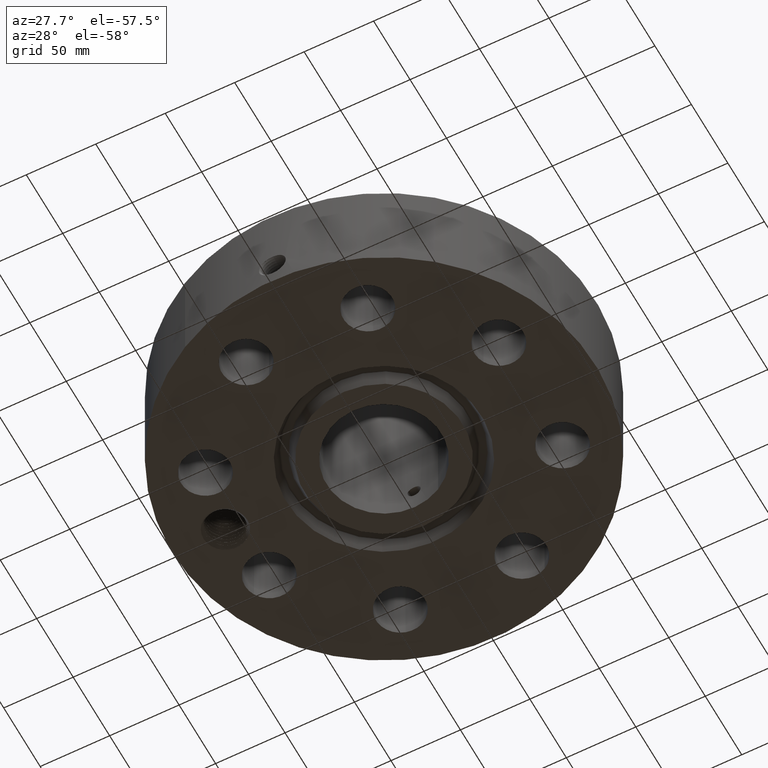
[diagram: clean part render]
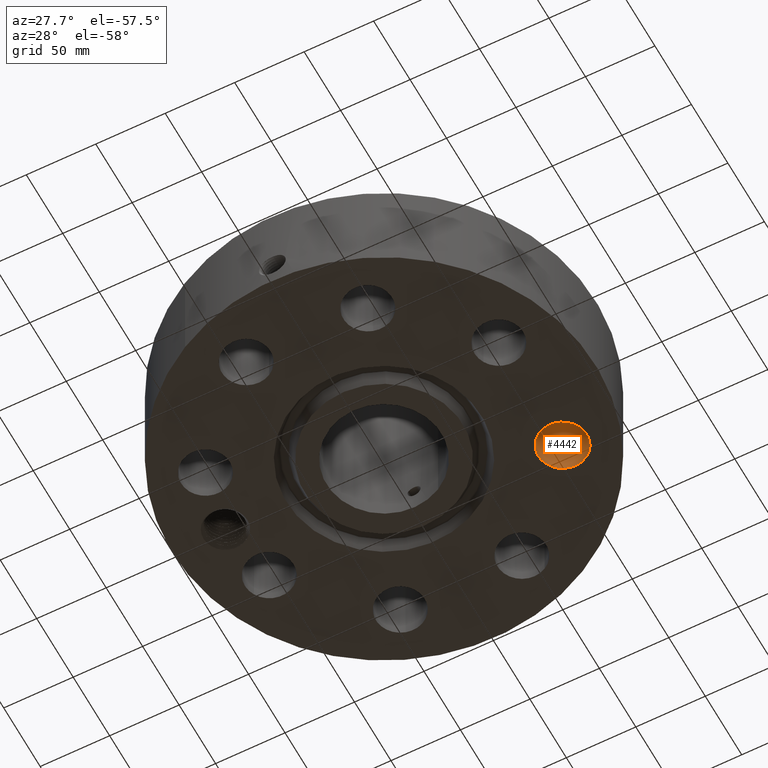
[diagram: same view with one face highlighted and labeled with its STEP entity id]
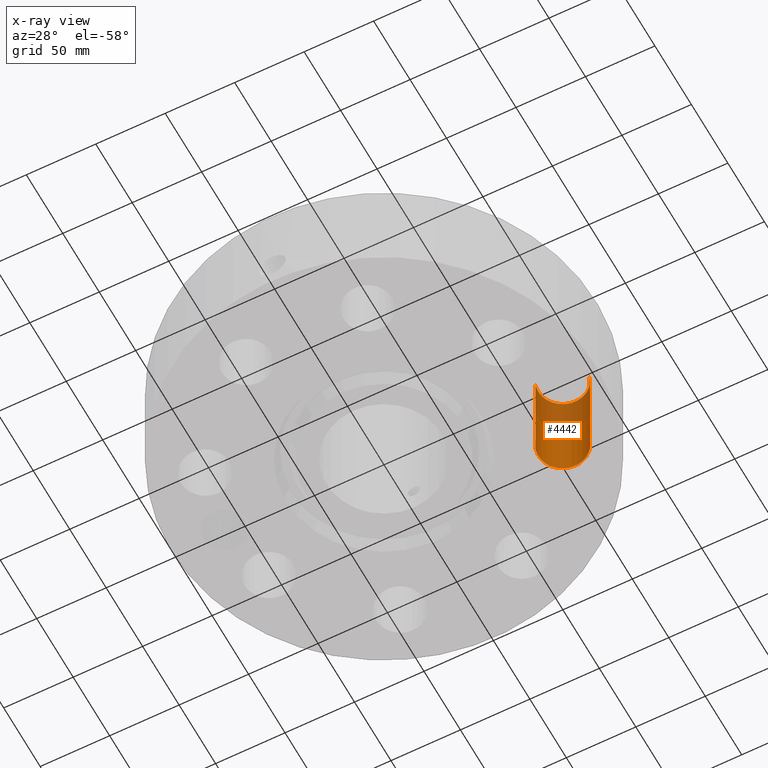
[diagram: x-ray of the same camera — body ghosted, the highlighted face saturated]
A machine part, auxiliary view. The second image highlights one B-rep face of the part: STEP entity #4442.
The next image is the same camera in x-ray: the body ghosted, the highlighted face saturated — about 37% of this face is hidden behind the body in this view.
In plain terms, the highlighted cylindrical surface (edge-blend (fillet) strip) has radius 17.526 mm, axis along (0, 0, -1).
Its self-contained STEP definition (entity closure, byte-faithful):
#3126=AXIS2_PLACEMENT_3D('Circle Axis2P3D',#3124,#3125,$) ;
#4415=AXIS2_PLACEMENT_3D('Cylinder Axis2P3D',#4412,#4413,#4414) ;
#4426=AXIS2_PLACEMENT_3D('Circle Axis2P3D',#4424,#4425,$) ;
#3119=CARTESIAN_POINT('Vertex',(4.81954714101,1.91633772214,2.99500000001)) ;
#3121=CARTESIAN_POINT('Vertex',(3.49536865163,1.52781316916,2.99500000001)) ;
#3124=CARTESIAN_POINT('Axis2P3D Location',(4.15745789632,1.72207544565,2.99500000001)) ;
#4412=CARTESIAN_POINT('Axis2P3D Location',(4.15745789632,1.72207544565,2.99106299214)) ;
#4417=CARTESIAN_POINT('Line Origine',(3.49536865163,1.52781316916,1.49750000001)) ;
#4421=CARTESIAN_POINT('Vertex',(3.49536865163,1.52781316916,0.)) ;
#4424=CARTESIAN_POINT('Axis2P3D Location',(4.15745789632,1.72207544565,0.)) ;
#4428=CARTESIAN_POINT('Vertex',(4.81954714101,1.91633772214,0.)) ;
#4431=CARTESIAN_POINT('Line Origine',(4.81954714101,1.91633772214,1.49750000001)) ;
#3125=DIRECTION('Axis2P3D Direction',(0.,0.,-0.0393700787402)) ;
#4413=DIRECTION('Axis2P3D Direction',(0.,0.,-0.0393700787402)) ;
#4414=DIRECTION('Axis2P3D XDirection',(0.0377775444876,0.0110842335096,0.)) ;
#4418=DIRECTION('Vector Direction',(0.,0.,-0.0393700787402)) ;
#4425=DIRECTION('Axis2P3D Direction',(0.,0.,-0.0393700787402)) ;
#4432=DIRECTION('Vector Direction',(0.,0.,-0.0393700787402)) ;
#4419=VECTOR('Line Direction',#4418,0.0393700787402) ;
#4433=VECTOR('Line Direction',#4432,0.0393700787402) ;
#4437=ORIENTED_EDGE('',*,*,#4423,.F.) ;
#4438=ORIENTED_EDGE('',*,*,#4430,.T.) ;
#4439=ORIENTED_EDGE('',*,*,#4435,.T.) ;
#4440=ORIENTED_EDGE('',*,*,#3128,.F.) ;
#4442=ADVANCED_FACE('PartBody',(#4441),#4416,.F.) ;
#3127=CIRCLE('generated circle',#3126,0.690000000003) ;
#4427=CIRCLE('generated circle',#4426,0.690000000003) ;
#4416=CYLINDRICAL_SURFACE('generated cylinder',#4415,0.690000000003) ;
#3128=EDGE_CURVE('',#3122,#3120,#3127,.T.) ;
#4423=EDGE_CURVE('',#4422,#3122,#4420,.F.) ;
#4430=EDGE_CURVE('',#4422,#4429,#4427,.T.) ;
#4435=EDGE_CURVE('',#4429,#3120,#4434,.F.) ;
#4436=EDGE_LOOP('',(#4437,#4438,#4439,#4440)) ;
#4441=FACE_OUTER_BOUND('',#4436,.T.) ;
#4420=LINE('Line',#4417,#4419) ;
#4434=LINE('Line',#4431,#4433) ;
#3120=VERTEX_POINT('',#3119) ;
#3122=VERTEX_POINT('',#3121) ;
#4422=VERTEX_POINT('',#4421) ;
#4429=VERTEX_POINT('',#4428) ;